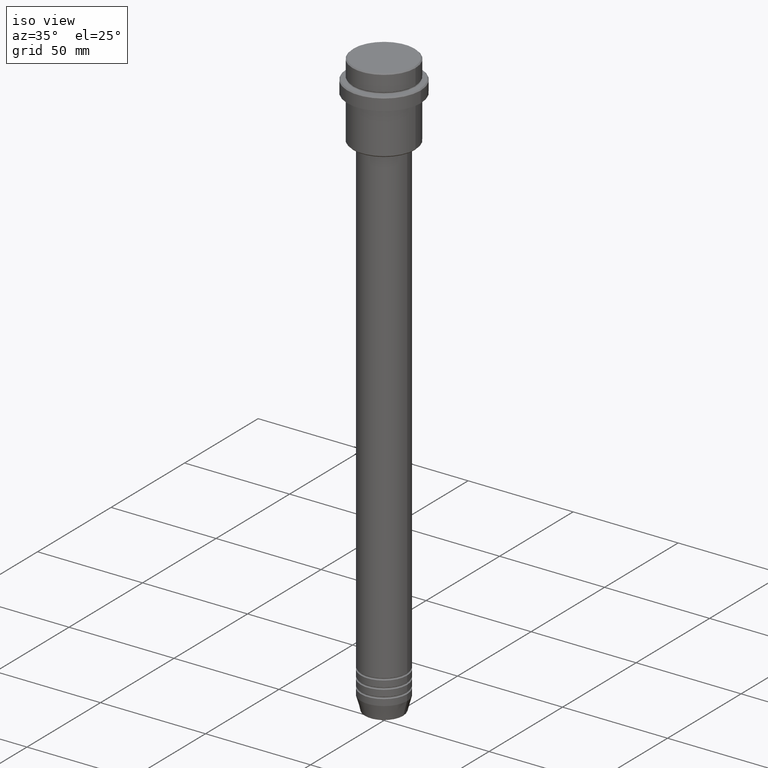
[diagram: clean part render]
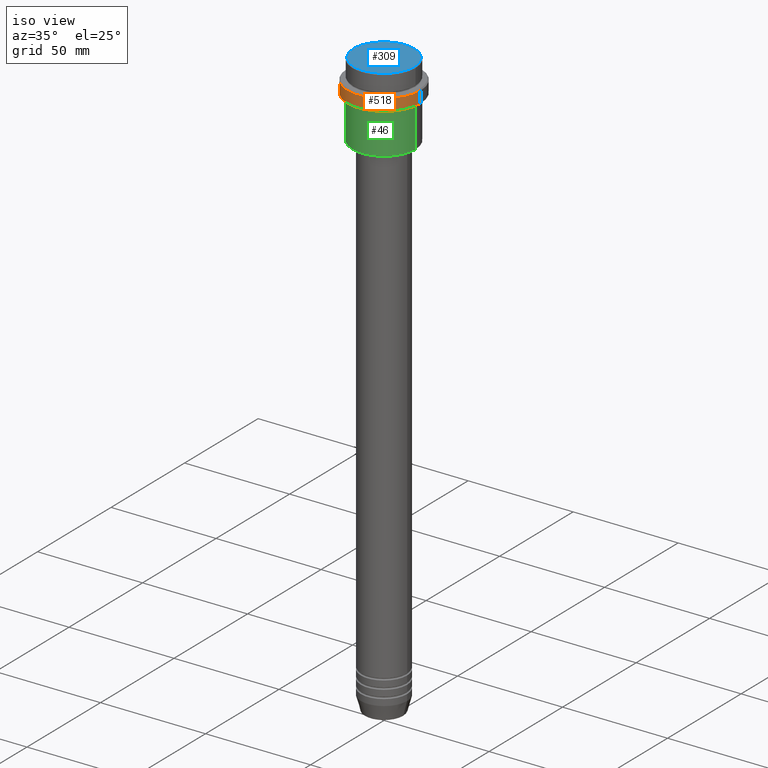
[diagram: same view with three faces highlighted in distinct colors, each labeled with its STEP entity id]
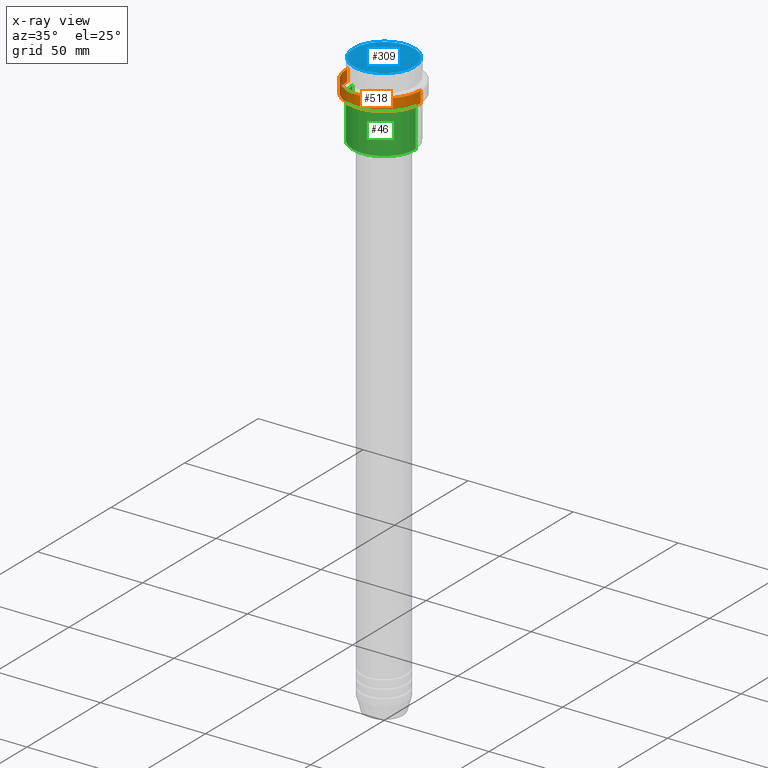
[diagram: x-ray of the same camera — body ghosted, the three highlighted faces saturated]
A machine part, iso view with three faces highlighted in distinct colors.
The next image is the same camera in x-ray (body ghosted, the three faces saturated) — at least one of them is partly hidden behind the body in this view.
Their STEP definitions:

[orange] entity #518 — the highlighted cylindrical surface (partial cylindrical patch) has radius 17.5 mm, axis along (-0, -0, 1).
#29 = CARTESIAN_POINT ( 'NONE',  ( 17.50000000000000000, 0.000000000000000000, 0.000000000000000000 ) ) ;
#47 = CARTESIAN_POINT ( 'NONE',  ( 17.50000000000000000, 0.000000000000000000, -15.00000000000000000 ) ) ;
#49 = ORIENTED_EDGE ( 'NONE', *, *, #953, .T. ) ;
#72 = AXIS2_PLACEMENT_3D ( 'NONE', #103, #694, #554 ) ;
#103 = CARTESIAN_POINT ( 'NONE',  ( 0.000000000000000000, 0.000000000000000000, -9.500000000000026645 ) ) ;
#112 = FACE_OUTER_BOUND ( 'NONE', #467, .T. ) ;
#167 = CARTESIAN_POINT ( 'NONE',  ( -17.50000000000000000, 2.143131898507868248E-15, -9.500000000000026645 ) ) ;
#190 = CARTESIAN_POINT ( 'NONE',  ( -17.50000000000000000, 2.143131898507868248E-15, 0.000000000000000000 ) ) ;
#205 = CARTESIAN_POINT ( 'NONE',  ( 0.000000000000000000, 0.000000000000000000, 0.000000000000000000 ) ) ;
#337 = EDGE_CURVE ( 'NONE', #775, #739, #405, .T. ) ;
#396 = ORIENTED_EDGE ( 'NONE', *, *, #849, .T. ) ;
#405 = LINE ( 'NONE', #190, #938 ) ;
#467 = EDGE_LOOP ( 'NONE', ( #579, #396, #539, #49 ) ) ;
#477 = VECTOR ( 'NONE', #886, 1000.000000000000000 ) ;
#518 = ADVANCED_FACE ( 'NONE', ( #112 ), #1005, .T. ) ;
#539 = ORIENTED_EDGE ( 'NONE', *, *, #1332, .T. ) ;
#554 = DIRECTION ( 'NONE',  ( 1.000000000000000000, 0.000000000000000000, 0.000000000000000000 ) ) ;
#579 = ORIENTED_EDGE ( 'NONE', *, *, #337, .F. ) ;
#589 = DIRECTION ( 'NONE',  ( -0.000000000000000000, -0.000000000000000000, 1.000000000000000000 ) ) ;
#660 = VERTEX_POINT ( 'NONE', #47 ) ;
#694 = DIRECTION ( 'NONE',  ( 0.000000000000000000, 0.000000000000000000, -1.000000000000000000 ) ) ;
#703 = CIRCLE ( 'NONE', #72, 17.50000000000000000 ) ;
#722 = AXIS2_PLACEMENT_3D ( 'NONE', #921, #589, #1228 ) ;
#730 = CARTESIAN_POINT ( 'NONE',  ( -17.50000000000000000, 2.143131898507868248E-15, -15.00000000000000000 ) ) ;
#739 = VERTEX_POINT ( 'NONE', #167 ) ;
#773 = LINE ( 'NONE', #29, #477 ) ;
#775 = VERTEX_POINT ( 'NONE', #730 ) ;
#849 = EDGE_CURVE ( 'NONE', #775, #660, #1050, .T. ) ;
#886 = DIRECTION ( 'NONE',  ( -0.000000000000000000, -0.000000000000000000, 1.000000000000000000 ) ) ;
#907 = DIRECTION ( 'NONE',  ( -0.000000000000000000, -0.000000000000000000, 1.000000000000000000 ) ) ;
#921 = CARTESIAN_POINT ( 'NONE',  ( 0.000000000000000000, 0.000000000000000000, -15.00000000000000000 ) ) ;
#938 = VECTOR ( 'NONE', #1180, 1000.000000000000000 ) ;
#953 = EDGE_CURVE ( 'NONE', #1160, #739, #703, .T. ) ;
#1005 = CYLINDRICAL_SURFACE ( 'NONE', #1209, 17.50000000000000000 ) ;
#1050 = CIRCLE ( 'NONE', #722, 17.50000000000000000 ) ;
#1090 = CARTESIAN_POINT ( 'NONE',  ( 17.50000000000000000, 0.000000000000000000, -9.500000000000026645 ) ) ;
#1160 = VERTEX_POINT ( 'NONE', #1090 ) ;
#1180 = DIRECTION ( 'NONE',  ( -0.000000000000000000, -0.000000000000000000, 1.000000000000000000 ) ) ;
#1209 = AXIS2_PLACEMENT_3D ( 'NONE', #205, #907, #1325 ) ;
#1228 = DIRECTION ( 'NONE',  ( 1.000000000000000000, 0.000000000000000000, 0.000000000000000000 ) ) ;
#1325 = DIRECTION ( 'NONE',  ( 1.000000000000000000, 0.000000000000000000, 0.000000000000000000 ) ) ;
#1332 = EDGE_CURVE ( 'NONE', #660, #1160, #773, .T. ) ;

[blue] entity #309 — the highlighted planar face has unit normal (0, -0, 1).
#79 = PLANE ( 'NONE',  #1118 ) ;
#215 = EDGE_CURVE ( 'NONE', #1136, #1302, #640, .T. ) ;
#227 = ORIENTED_EDGE ( 'NONE', *, *, #280, .T. ) ;
#280 = EDGE_CURVE ( 'NONE', #1302, #1136, #1023, .T. ) ;
#300 = DIRECTION ( 'NONE',  ( 1.000000000000000000, 0.000000000000000000, 0.000000000000000000 ) ) ;
#309 = ADVANCED_FACE ( 'NONE', ( #977 ), #79, .T. ) ;
#327 = AXIS2_PLACEMENT_3D ( 'NONE', #1068, #958, #538 ) ;
#466 = EDGE_LOOP ( 'NONE', ( #711, #227 ) ) ;
#538 = DIRECTION ( 'NONE',  ( 1.000000000000000000, 0.000000000000000000, 0.000000000000000000 ) ) ;
#640 = CIRCLE ( 'NONE', #1249, 14.49999999999995559 ) ;
#644 = CARTESIAN_POINT ( 'NONE',  ( 0.000000000000000000, 0.000000000000000000, 0.000000000000000000 ) ) ;
#711 = ORIENTED_EDGE ( 'NONE', *, *, #215, .T. ) ;
#848 = CARTESIAN_POINT ( 'NONE',  ( -14.49999999999995559, 0.000000000000000000, 0.000000000000000000 ) ) ;
#958 = DIRECTION ( 'NONE',  ( -0.000000000000000000, -0.000000000000000000, 1.000000000000000000 ) ) ;
#977 = FACE_OUTER_BOUND ( 'NONE', #466, .T. ) ;
#1023 = CIRCLE ( 'NONE', #327, 14.49999999999995559 ) ;
#1068 = CARTESIAN_POINT ( 'NONE',  ( 0.000000000000000000, 0.000000000000000000, 0.000000000000000000 ) ) ;
#1086 = CARTESIAN_POINT ( 'NONE',  ( 0.000000000000000000, 0.000000000000000000, 0.000000000000000000 ) ) ;
#1118 = AXIS2_PLACEMENT_3D ( 'NONE', #644, #1372, #1175 ) ;
#1136 = VERTEX_POINT ( 'NONE', #848 ) ;
#1175 = DIRECTION ( 'NONE',  ( 1.000000000000000000, 0.000000000000000000, 0.000000000000000000 ) ) ;
#1221 = CARTESIAN_POINT ( 'NONE',  ( 14.49999999999995559, 1.806354028742343041E-15, 0.000000000000000000 ) ) ;
#1249 = AXIS2_PLACEMENT_3D ( 'NONE', #1086, #1284, #300 ) ;
#1284 = DIRECTION ( 'NONE',  ( -0.000000000000000000, -0.000000000000000000, 1.000000000000000000 ) ) ;
#1302 = VERTEX_POINT ( 'NONE', #1221 ) ;
#1372 = DIRECTION ( 'NONE',  ( 0.000000000000000000, -0.000000000000000000, 1.000000000000000000 ) ) ;

[green] entity #46 — the highlighted cylindrical surface (partial cylindrical patch) has radius 15 mm, axis along (-0, -0, 1).
#24 = VERTEX_POINT ( 'NONE', #445 ) ;
#45 = DIRECTION ( 'NONE',  ( -1.000000000000000000, 0.000000000000000000, 0.000000000000000000 ) ) ;
#46 = ADVANCED_FACE ( 'NONE', ( #1358 ), #481, .T. ) ;
#71 = ORIENTED_EDGE ( 'NONE', *, *, #1291, .F. ) ;
#95 = ORIENTED_EDGE ( 'NONE', *, *, #339, .F. ) ;
#142 = CARTESIAN_POINT ( 'NONE',  ( -15.00000000000000000, 1.836970198721029589E-15, -35.50000000000005684 ) ) ;
#187 = VERTEX_POINT ( 'NONE', #142 ) ;
#277 = EDGE_CURVE ( 'NONE', #328, #1281, #1285, .T. ) ;
#301 = DIRECTION ( 'NONE',  ( -0.000000000000000000, -0.000000000000000000, 1.000000000000000000 ) ) ;
#307 = CARTESIAN_POINT ( 'NONE',  ( 15.00000000000000000, 0.000000000000000000, 0.000000000000000000 ) ) ;
#316 = CARTESIAN_POINT ( 'NONE',  ( 15.00000000000000000, 0.000000000000000000, -35.50000000000005684 ) ) ;
#328 = VERTEX_POINT ( 'NONE', #316 ) ;
#339 = EDGE_CURVE ( 'NONE', #187, #24, #622, .T. ) ;
#441 = DIRECTION ( 'NONE',  ( -0.000000000000000000, -0.000000000000000000, 1.000000000000000000 ) ) ;
#445 = CARTESIAN_POINT ( 'NONE',  ( -15.00000000000000355, 1.836970198721029983E-15, -16.00000000000000000 ) ) ;
#481 = CYLINDRICAL_SURFACE ( 'NONE', #1116, 15.00000000000000000 ) ;
#565 = ORIENTED_EDGE ( 'NONE', *, *, #277, .T. ) ;
#580 = EDGE_LOOP ( 'NONE', ( #95, #801, #565, #71 ) ) ;
#622 = LINE ( 'NONE', #1061, #915 ) ;
#659 = CARTESIAN_POINT ( 'NONE',  ( 15.00000000000000178, 0.000000000000000000, -16.00000000000000000 ) ) ;
#689 = CIRCLE ( 'NONE', #893, 15.00000000000000178 ) ;
#717 = CARTESIAN_POINT ( 'NONE',  ( 0.000000000000000000, 0.000000000000000000, 0.000000000000000000 ) ) ;
#726 = AXIS2_PLACEMENT_3D ( 'NONE', #1049, #1040, #45 ) ;
#801 = ORIENTED_EDGE ( 'NONE', *, *, #1084, .T. ) ;
#846 = DIRECTION ( 'NONE',  ( -0.000000000000000000, -0.000000000000000000, 1.000000000000000000 ) ) ;
#893 = AXIS2_PLACEMENT_3D ( 'NONE', #988, #441, #960 ) ;
#915 = VECTOR ( 'NONE', #301, 1000.000000000000000 ) ;
#920 = DIRECTION ( 'NONE',  ( -0.000000000000000000, -0.000000000000000000, 1.000000000000000000 ) ) ;
#960 = DIRECTION ( 'NONE',  ( 1.000000000000000000, 0.000000000000000000, 0.000000000000000000 ) ) ;
#988 = CARTESIAN_POINT ( 'NONE',  ( 0.000000000000000000, 0.000000000000000000, -16.00000000000000000 ) ) ;
#1040 = DIRECTION ( 'NONE',  ( -0.000000000000000000, -0.000000000000000000, 1.000000000000000000 ) ) ;
#1049 = CARTESIAN_POINT ( 'NONE',  ( 0.000000000000000000, 0.000000000000000000, -35.50000000000005684 ) ) ;
#1061 = CARTESIAN_POINT ( 'NONE',  ( -15.00000000000000000, 1.836970198721029589E-15, 0.000000000000000000 ) ) ;
#1084 = EDGE_CURVE ( 'NONE', #187, #328, #1233, .T. ) ;
#1116 = AXIS2_PLACEMENT_3D ( 'NONE', #717, #920, #1347 ) ;
#1233 = CIRCLE ( 'NONE', #726, 15.00000000000000000 ) ;
#1281 = VERTEX_POINT ( 'NONE', #659 ) ;
#1285 = LINE ( 'NONE', #307, #1361 ) ;
#1291 = EDGE_CURVE ( 'NONE', #24, #1281, #689, .T. ) ;
#1347 = DIRECTION ( 'NONE',  ( 1.000000000000000000, 0.000000000000000000, 0.000000000000000000 ) ) ;
#1358 = FACE_OUTER_BOUND ( 'NONE', #580, .T. ) ;
#1361 = VECTOR ( 'NONE', #846, 1000.000000000000000 ) ;